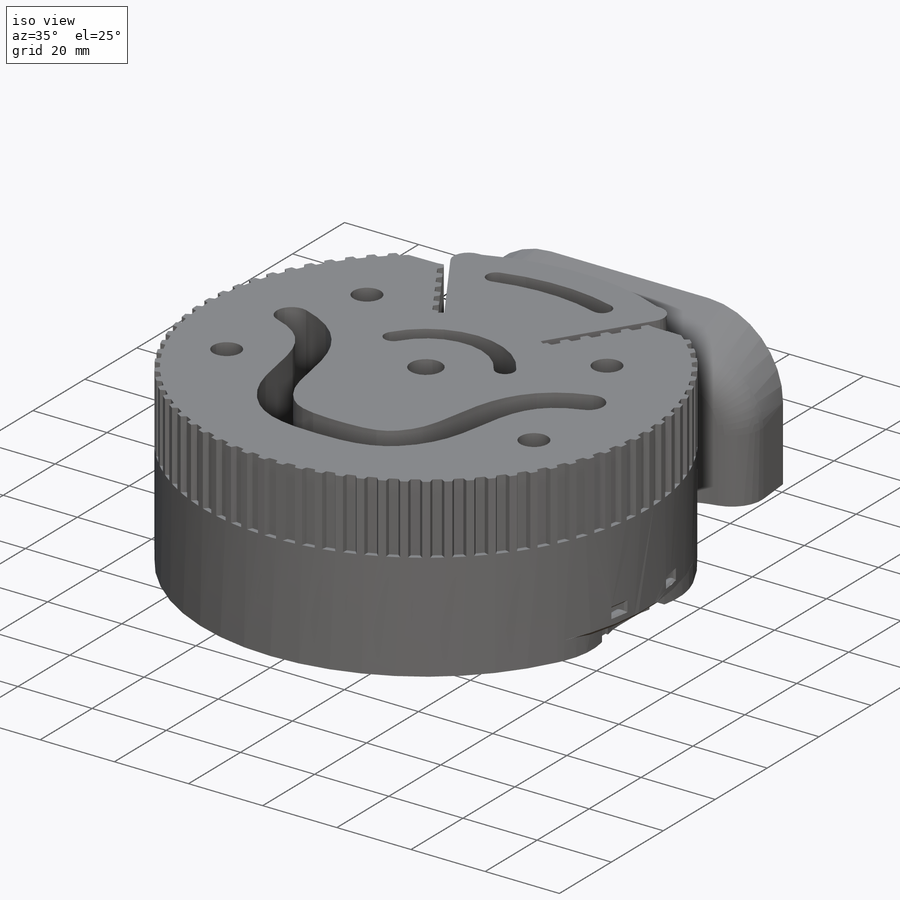
[diagram: iso view]
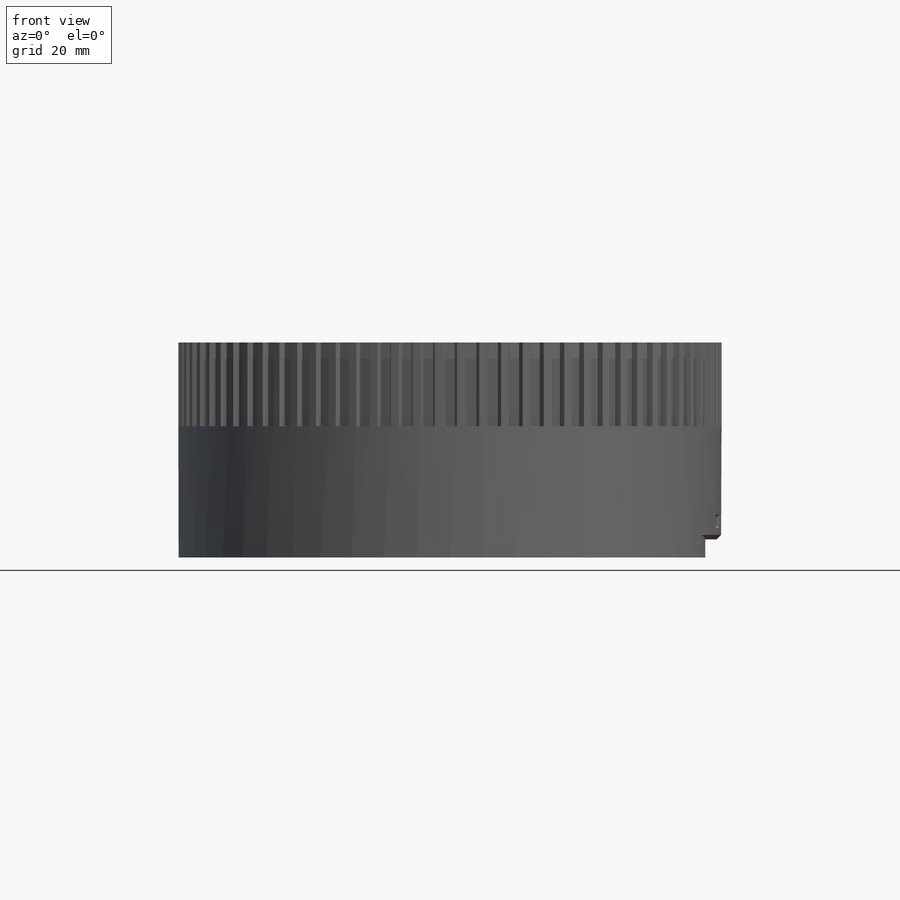
[diagram: front view]
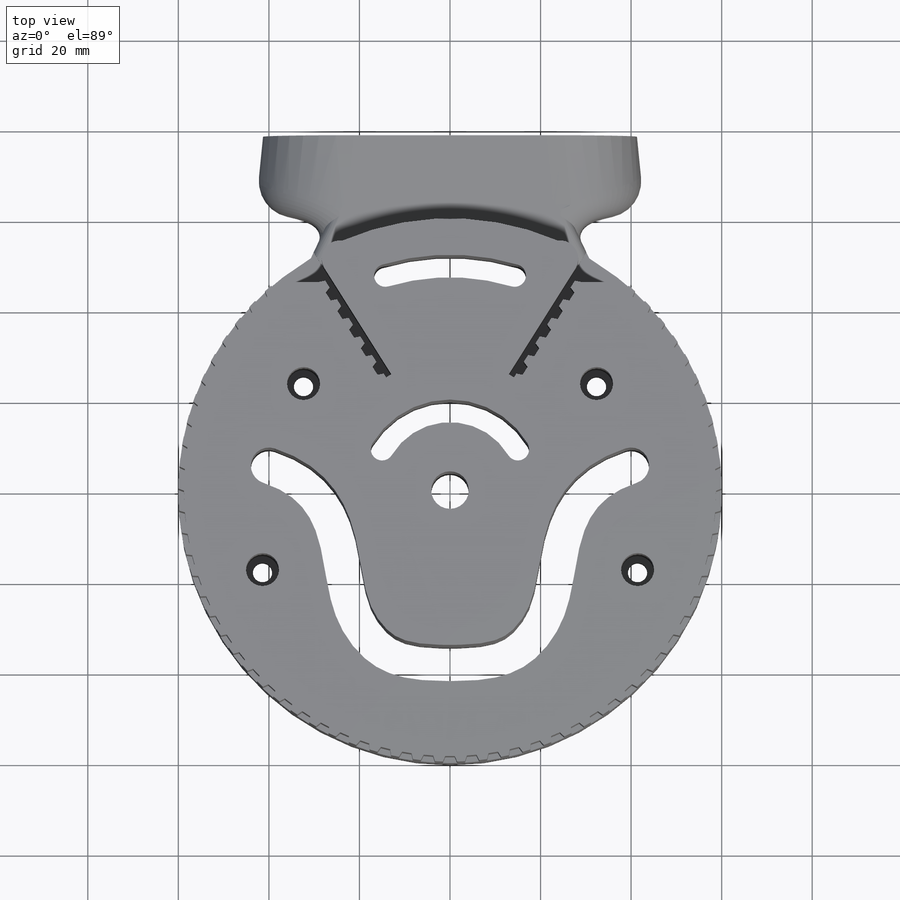
[diagram: top view]
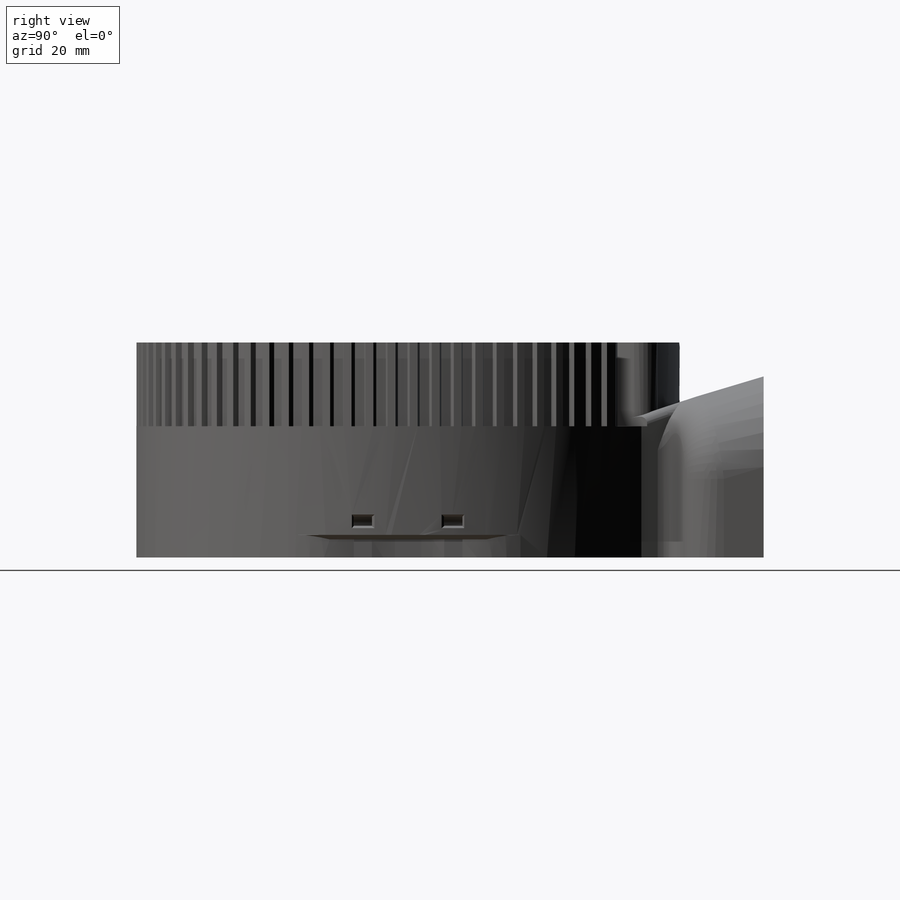
[diagram: right view]
SOLIDWORKS PART (.sldprt)
format: sldprt  version: not decoded by parser v0  size: 1,720,832 bytes
history: native  units: mm
features: sketch x21, cut_extrude x16, fillet x10, plane x5, extrude x4, chamfer x2, material x1, pattern_circular x1 (+9 scaffold rows collapsed)
feature tree (69):
  scaffold x9  (default folders/planes/origin — collapsed)
  material  "Material <sin especificar>"
  plane  "Alzado"
  plane  "Planta"
  plane  "Vista lateral"
  sketch  "Croquis1"  dims[c1.D1=120.0mm c1.D9=8.3mm c1.D2=8.0mm c1.D3=25.0mm c1.D4=16.3mm c1.D5=15.0mm c1.D6=1.5mm c1.D7=1.5mm c2.D2=15.0mm c2.D8=82.6mm c3.D2=12.0mm]
  extrude  "Saliente-Extruir1"  Depth=47.5mm
  sketch  "Croquis2"  dims[D1=120.1mm D2=1.3mm D3=2.1mm D4=0.5mm D5=0.5mm D6=1.75mm]
  cut_extrude  "Cortar-Extruir1"  Depth=18.5mm
  pattern_circular  "MatrizC1"  Count=77 Angle=360deg
  sketch  "Croquis8"  dims[c1.D2=8.0mm c1.D1=12.0mm c2.D2=7.5mm c2.D3=12.0mm c2.D1=22.0mm c3.D2=~5.190099mm c4.D2=~139.640337deg c5.D2=~14.067245mm c6.D2=~73.379049deg c6.D3=~5.190099mm c7.D3=36.69deg c7.D1=~14.067245mm c8.D1=~80.96063deg c9.D1=~14.067245mm c10.D1=40.48deg c11.D1=~15.732133mm c12.D1=~73.379049deg c13.D1=~15.074813mm]
  cut_extrude  "Cortar-Extruir8"  [1 undecoded]
  sketch  "Croquis10"  dims[c1.D1=12.0mm c1.D2=~6.677548mm c2.D2=73.38deg c3.D2=4.0mm c3.D3=~14.955908mm c4.D3=73.38deg c4.D1=0.0mm]
  cut_extrude  "Cortar-Extruir10"  [1 undecoded]
  sketch  "Croquis11"  dims[c1.D3=40.0mm c1.D4=40.0mm c1.D1=~20.464374mm c2.D1=45.0deg c2.D2=~28.773829mm c3.D2=45.0deg]
  sketch  "Croquis13"  dims[D1=13.78mm]
  extrude  "Saliente-Extruir7"  [1 undecoded]
  cut_extrude  "Cortar-Extruir13"  [1 undecoded]
  cut_extrude  "Cortar-Extruir14"  [1 undecoded]
  sketch  "Croquis11<6>"
  sketch  "Croquis21"  dims[D1=120.0mm]
  extrude  "Saliente-Extruir13"  Depth=19mm
  fillet  "Redondeo18"  Radius=8mm
  fillet  "Redondeo19"  Radius=8mm
  fillet  "Redondeo21"  Radius=8mm
  fillet  "Redondeo22"  Radius=2mm
  fillet  "Redondeo23"  Radius=8mm
  fillet  "Redondeo24"  Radius=2mm
  sketch  "Croquis22"  dims[D1=2.65mm D2=1.3mm D3=2.7mm D4=2.1mm D5=2.1mm D6=0.5mm D7=0.5mm D8=1.75mm D9=0.5mm D10=2.1mm D11=0.5mm D12=1.75mm D13=0.5mm D14=2.1mm D15=0.5mm D16=1.75mm D17=0.5mm D18=2.1mm D19=0.5mm D20=1.75mm D21=0.5mm D22=2.1mm D23=0.5mm D24=1.75mm D25=0.5mm D26=2.1mm D27=0.5mm D28=1.0mm]
  cut_extrude  "Cortar-Extruir16"  Depth=18.5mm
  fillet  "Redondeo27"  Radius=4mm
  sketch  "Croquis23"  dims[c1.D2=~104.64339mm c1.D3=~89.883767mm c1.D5=40.0mm c1.D6=~27.24206mm c2.D2=8.0mm c2.D3=5.0mm c2.D4=30.0mm c2.D6=5.0mm c2.D7=2.5mm c2.D8=118.75mm c3.D8=~58.928207deg c4.D8=118.75mm c5.D8=~58.928207deg c5.D9=2.5mm c5.D10=2.5mm c5.D1=8.0mm]
  cut_extrude  "Cortar-Extruir18"  Depth=58.5mm
  sketch  "Croquis24"  dims[c1.D1=80.0mm c1.D2=90.0mm c1.D5=7.3mm c1.D6=4.3mm c1.D3=~23.350125mm c2.D3=108.0deg c2.D4=~13.641471mm c3.D4=145.0deg c4.D4=~17.625722mm c5.D4=~133.881513deg c6.D4=~17.625722mm c7.D4=~133.881513deg c8.D4=~17.625722mm c9.D4=134.0deg]
  cut_extrude  "Cortar-Extruir21"  Depth=57.5mm
  cut_extrude  "Cortar-Extruir22"  [1 undecoded]
  sketch  "Croquis24<7>"  dims[D1=37.5mm]
  cut_extrude  "Cortar-Extruir23"  [1 undecoded]
  sketch  "Croquis23<4>"  dims[D1=63.3mm]
  sketch  "Croquis25"  dims[c1.D4=4.3mm c1.D1=23.19mm c1.D2=36.22mm c1.D3=22.6mm c2.D4=23.19mm]
  sketch  "Croquis26"  dims[D1=36.22mm D2=10.0mm D3=3.3mm D4=7.3mm]
  cut_extrude  "Cortar-Extruir24"  Depth=26.81mm
  sketch  "Croquis27"  dims[D1=7.3mm D2=~22.595343mm]
  extrude  "Saliente-Extruir14"  Depth=3.3mm
  cut_extrude  "Cortar-Extruir25"  Depth=11mm
  plane  "Plano1"
  sketch  "Croquis28"  dims[c1.D1=1.0mm c1.D2=~13.166182mm c2.D2=15.0deg c2.D3=12.0mm]
  cut_extrude  "Cortar-Extruir26"  Depth=2mm
  sketch  "Croquis29"
  plane  "Plano2"
  sketch  "Croquis30"  dims[D1=30.0mm D2=4.0mm]
  cut_extrude  "Cortar-Extruir27"  Depth=6mm
  sketch  "Croquis31"  dims[D1=30.0mm D2=4.0mm D3=4.0mm D4=3.0mm D5=3.0mm D6=2.0mm]
  sketch  "Croquis32"  dims[D1=2.0mm D2=4.0mm D3=3.0mm D4=1.0mm]
  cut_extrude  "Cortar-Extruir31"  Depth=6mm
  fillet  "Redondeo28"  Radius=20mm
  fillet  "Redondeo29"  Radius=20mm
  cut_extrude  "Cortar-Extruir32"  Depth=10mm
  chamfer  "Chaflán1"  Distance=0.5mm Angle=45deg
  fillet  "Redondeo30"  Radius=2mm
  chamfer  "Chaflán2"  Distance=1mm Angle=45deg
decode coverage: 45 of 54 modeling features carry decoded parameters
note: ~ marks probable driven/reference dimensions
note: 7 parameter values undecoded
summary: no parameter record found for 7 features
note: suppression state not decoded; provenance and decode notes live in map.json
